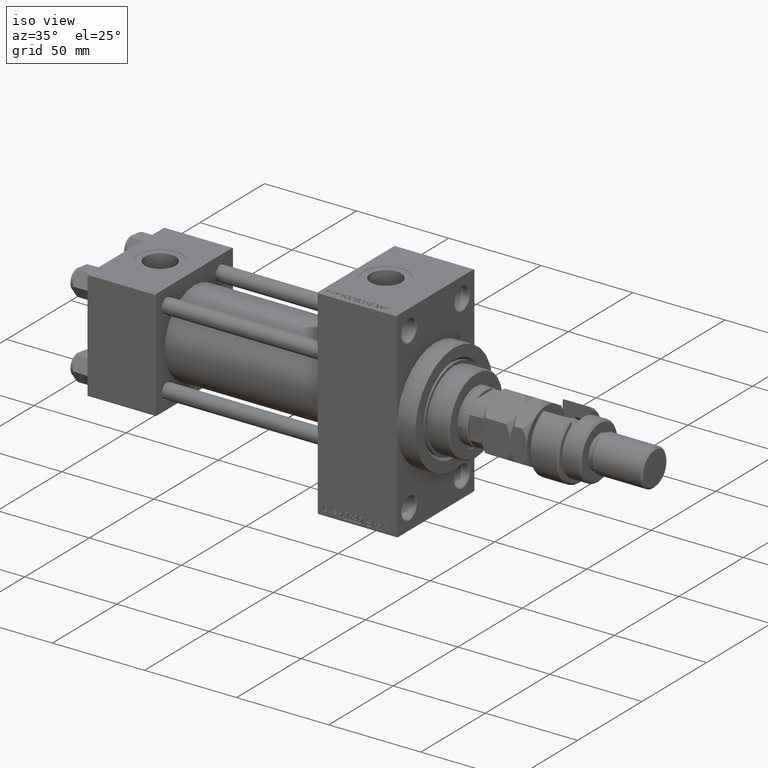
[diagram: clean part render]
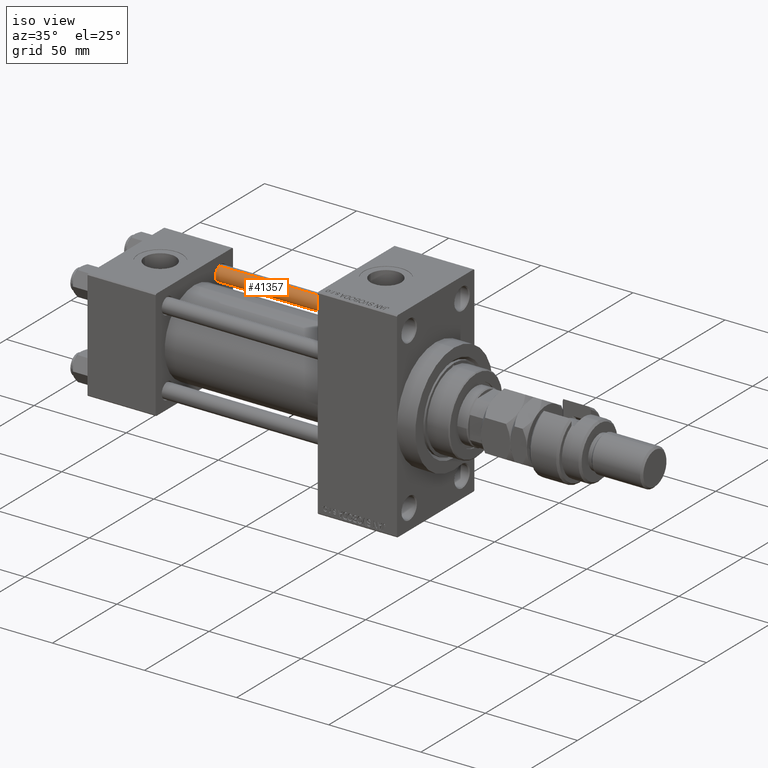
[diagram: same view with one face highlighted and labeled with its STEP entity id]
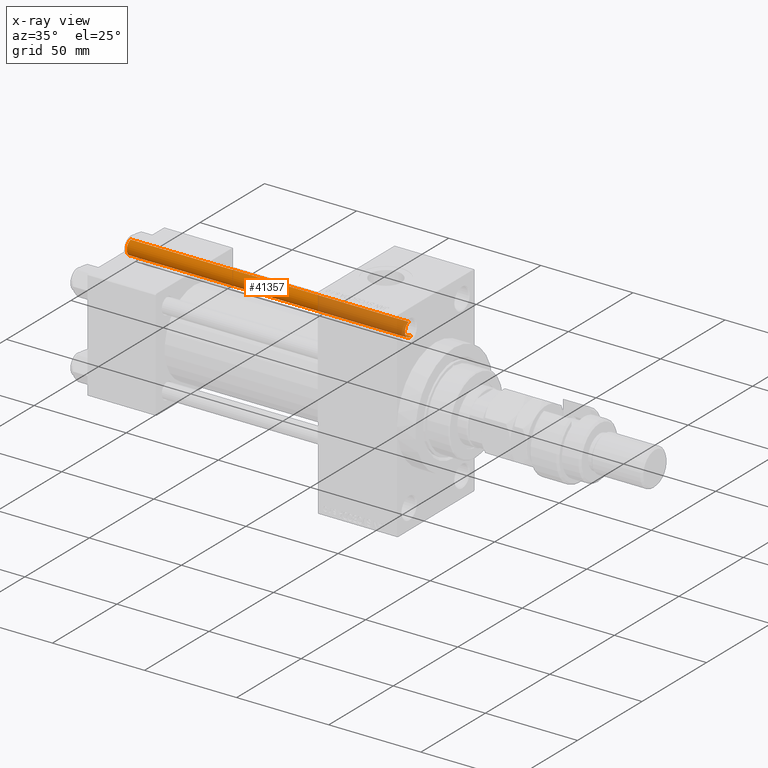
[diagram: x-ray of the same camera — body ghosted, the highlighted face saturated]
A machine part, iso view. The second image highlights one B-rep face of the part: STEP entity #41357.
The next image is the same camera in x-ray: the body ghosted, the highlighted face saturated — about 32% of this face is hidden behind the body in this view.
In plain terms, the highlighted cylindrical surface (edge-blend (fillet) strip) has radius 4 mm, axis along (-1, -0, 0).
Its self-contained STEP definition (entity closure, byte-faithful):
#272 = DIRECTION ( 'NONE',  ( 0.000000000000000000, 0.000000000000000000, -1.000000000000000000 ) ) ;
#4829 = AXIS2_PLACEMENT_3D ( 'NONE', #33888, #8473, #33635 ) ;
#5496 = CIRCLE ( 'NONE', #46941, 4.000000000000000000 ) ;
#5658 = ORIENTED_EDGE ( 'NONE', *, *, #46499, .T. ) ;
#7487 = CYLINDRICAL_SURFACE ( 'NONE', #13283, 4.000000000000000000 ) ;
#8473 = DIRECTION ( 'NONE',  ( -0.000000000000000000, -0.000000000000000000, 1.000000000000000000 ) ) ;
#12120 = DIRECTION ( 'NONE',  ( -0.000000000000000000, -0.000000000000000000, -1.000000000000000000 ) ) ;
#13283 = AXIS2_PLACEMENT_3D ( 'NONE', #45046, #40974, #16120 ) ;
#15434 = VERTEX_POINT ( 'NONE', #41480 ) ;
#15674 = CARTESIAN_POINT ( 'NONE',  ( -4.000000000000000000, 0.000000000000000000, 152.0000000000000000 ) ) ;
#16120 = DIRECTION ( 'NONE',  ( -1.000000000000000000, 0.000000000000000000, 0.000000000000000000 ) ) ;
#16936 = VERTEX_POINT ( 'NONE', #36311 ) ;
#18435 = VERTEX_POINT ( 'NONE', #45080 ) ;
#20182 = FACE_OUTER_BOUND ( 'NONE', #45798, .T. ) ;
#22700 = VECTOR ( 'NONE', #12120, 1000.000000000000000 ) ;
#22917 = ORIENTED_EDGE ( 'NONE', *, *, #42390, .T. ) ;
#23020 = LINE ( 'NONE', #32201, #49236 ) ;
#27054 = DIRECTION ( 'NONE',  ( -0.000000000000000000, -0.000000000000000000, -1.000000000000000000 ) ) ;
#32201 = CARTESIAN_POINT ( 'NONE',  ( 4.000000000000000000, 4.898587196589412829E-16, 152.0000000000000000 ) ) ;
#32990 = EDGE_CURVE ( 'NONE', #43777, #18435, #23020, .T. ) ;
#33635 = DIRECTION ( 'NONE',  ( 1.000000000000000000, 0.000000000000000000, 0.000000000000000000 ) ) ;
#33888 = CARTESIAN_POINT ( 'NONE',  ( 0.000000000000000000, 0.000000000000000000, 0.5000000000000281997 ) ) ;
#34147 = ORIENTED_EDGE ( 'NONE', *, *, #48642, .T. ) ;
#36311 = CARTESIAN_POINT ( 'NONE',  ( -4.000000000000000000, 0.000000000000000000, 151.5000000000000284 ) ) ;
#37306 = CARTESIAN_POINT ( 'NONE',  ( 0.000000000000000000, 0.000000000000000000, 151.5000000000000284 ) ) ;
#40974 = DIRECTION ( 'NONE',  ( -0.000000000000000000, -0.000000000000000000, -1.000000000000000000 ) ) ;
#41357 = ADVANCED_FACE ( 'NONE', ( #20182 ), #7487, .T. ) ;
#41480 = CARTESIAN_POINT ( 'NONE',  ( -4.000000000000000000, 0.000000000000000000, 0.5000000000000281997 ) ) ;
#41563 = CARTESIAN_POINT ( 'NONE',  ( 4.000000000000000000, 4.898587196589412829E-16, 151.5000000000000284 ) ) ;
#42390 = EDGE_CURVE ( 'NONE', #15434, #18435, #53185, .T. ) ;
#43777 = VERTEX_POINT ( 'NONE', #41563 ) ;
#45046 = CARTESIAN_POINT ( 'NONE',  ( 0.000000000000000000, 0.000000000000000000, 152.0000000000000000 ) ) ;
#45080 = CARTESIAN_POINT ( 'NONE',  ( 4.000000000000000000, 4.898587196589412829E-16, 0.5000000000000281997 ) ) ;
#45486 = ORIENTED_EDGE ( 'NONE', *, *, #32990, .F. ) ;
#45798 = EDGE_LOOP ( 'NONE', ( #45486, #34147, #5658, #22917 ) ) ;
#46499 = EDGE_CURVE ( 'NONE', #16936, #15434, #52717, .T. ) ;
#46941 = AXIS2_PLACEMENT_3D ( 'NONE', #37306, #272, #49210 ) ;
#48642 = EDGE_CURVE ( 'NONE', #43777, #16936, #5496, .T. ) ;
#49210 = DIRECTION ( 'NONE',  ( 1.000000000000000000, 0.000000000000000000, 0.000000000000000000 ) ) ;
#49236 = VECTOR ( 'NONE', #27054, 1000.000000000000000 ) ;
#52717 = LINE ( 'NONE', #15674, #22700 ) ;
#53185 = CIRCLE ( 'NONE', #4829, 4.000000000000000000 ) ;